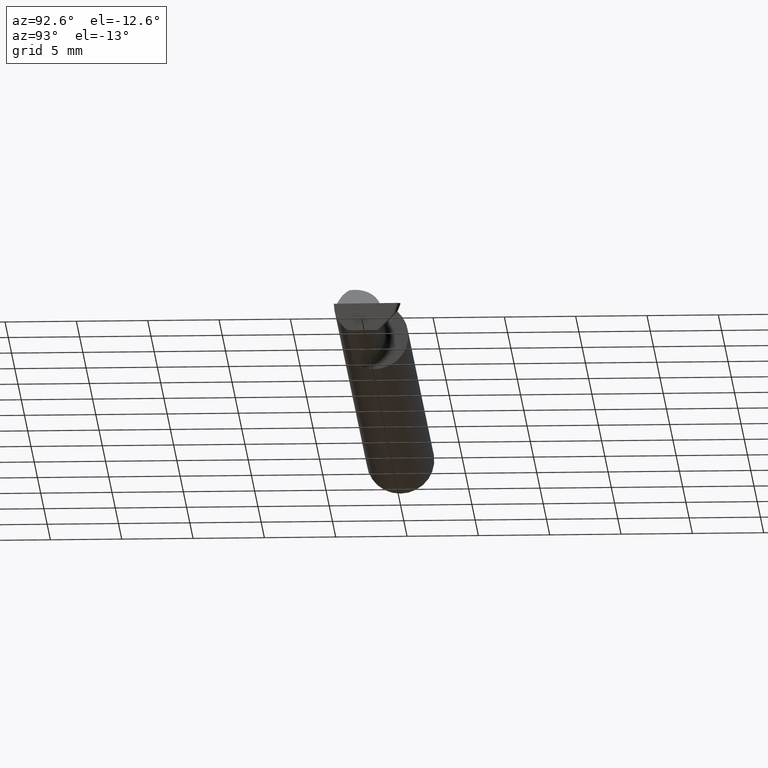
[diagram: clean part render]
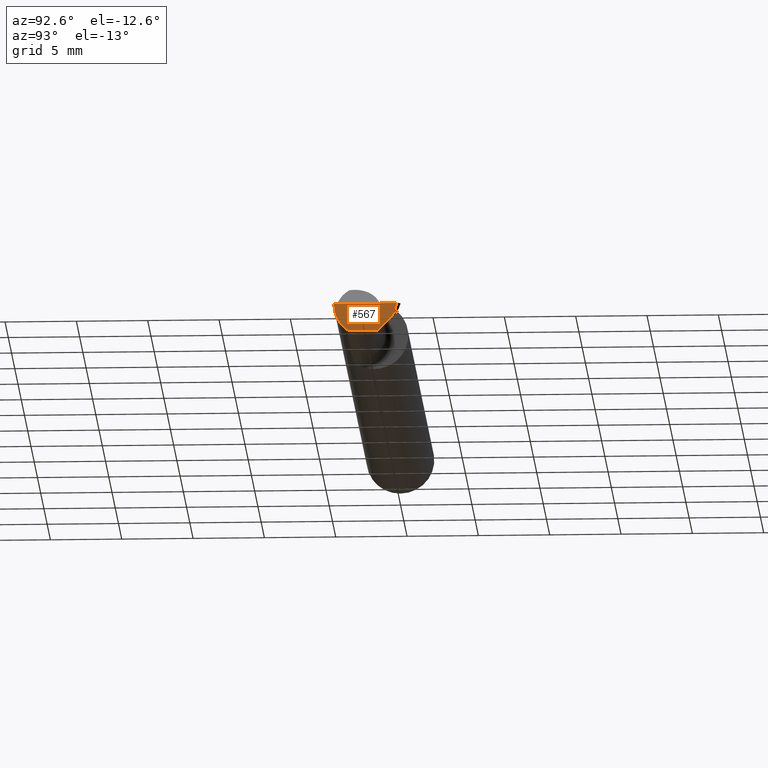
[diagram: same view with one face highlighted and labeled with its STEP entity id]
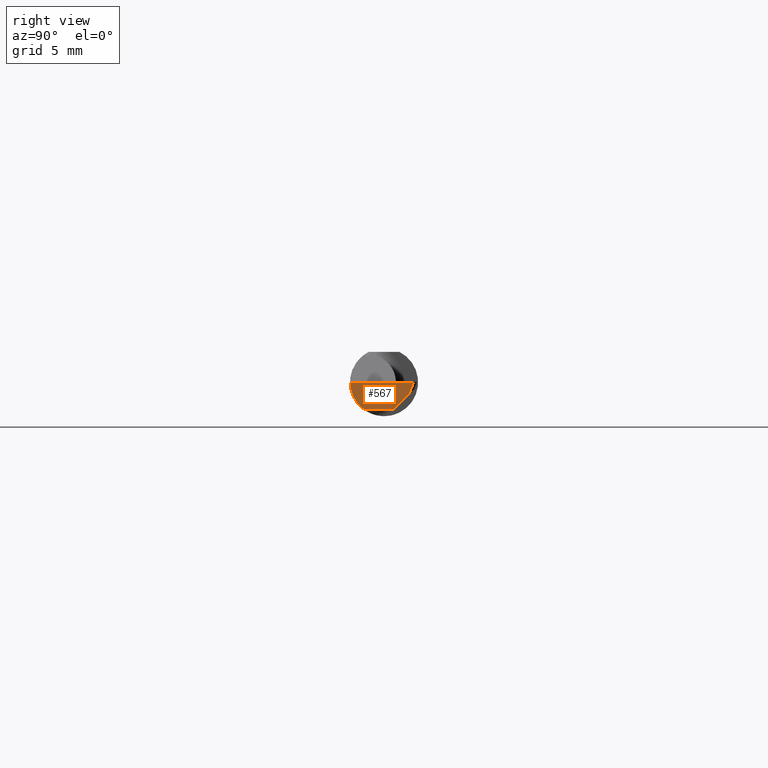
[diagram: same view with one face highlighted and labeled with its STEP entity id]
A machine part, auxiliary view. The second image highlights one B-rep face of the part: STEP entity #567.
A second angle (right view) of the same face is appended — the face is thin or edge-on in the first view.
In plain terms, the highlighted planar face has unit normal (-0.9992, 0.0174, 0.0349).
Its self-contained STEP definition (entity closure, byte-faithful):
#18 = VECTOR ( 'NONE', #527, 39.37007874015748143 ) ;
#26 = ORIENTED_EDGE ( 'NONE', *, *, #439, .F. ) ;
#38 = DIRECTION ( 'NONE',  ( 0.03490480639812536257, 0.000000000000000000, 0.9993906415863165194 ) ) ;
#53 = CARTESIAN_POINT ( 'NONE',  ( 1.995122200632949871, -0.04781600192481517270, -0.07500000000000003886 ) ) ;
#58 = VERTEX_POINT ( 'NONE', #440 ) ;
#71 = DIRECTION ( 'NONE',  ( -0.01745240643727645827, -0.9998476951563912696, 0.000000000000000000 ) ) ;
#75 = VECTOR ( 'NONE', #471, 39.37007874015748854 ) ;
#78 = EDGE_CURVE ( 'NONE', #574, #545, #761, .T. ) ;
#90 =( BOUNDED_CURVE ( )  B_SPLINE_CURVE ( 3, ( #273, #521, #563, #145 ),
 .UNSPECIFIED., .F., .F. ) 
 B_SPLINE_CURVE_WITH_KNOTS ( ( 4, 4 ),
 ( 0.2063001339125309086, 1.107331509589561058 ),
 .UNSPECIFIED. ) 
 CURVE ( )  GEOMETRIC_REPRESENTATION_ITEM ( )  RATIONAL_B_SPLINE_CURVE ( ( 1.000000000000000000, 0.9334817841311873199, 0.9334817841311873199, 1.000000000000000000 ) ) 
 REPRESENTATION_ITEM ( '' )  );
#116 = PLANE ( 'NONE',  #589 ) ;
#118 = CARTESIAN_POINT ( 'NONE',  ( 1.995213246285213016, -0.04259999999999980469, -0.07500000000000002498 ) ) ;
#124 = CARTESIAN_POINT ( 'NONE',  ( 1.996436576927335116, 0.02748456554894272708, -0.07500000000000002498 ) ) ;
#128 = LINE ( 'NONE', #808, #498 ) ;
#145 = CARTESIAN_POINT ( 'NONE',  ( 1.996942494641693600, -0.09360000000000001652, 0.000000000000000000 ) ) ;
#203 = DIRECTION ( 'NONE',  ( -0.01745240643727645827, -0.9998476951563912696, 0.000000000000000000 ) ) ;
#250 = EDGE_CURVE ( 'NONE', #712, #545, #128, .T. ) ;
#273 = CARTESIAN_POINT ( 'NONE',  ( 1.994999172194938941, -0.05810704225352107677, -0.07337936794867833123 ) ) ;
#279 = CARTESIAN_POINT ( 'NONE',  ( 1.998599639583657162, 0.06877923926384967024, -0.03370532628509262385 ) ) ;
#280 = LINE ( 'NONE', #769, #18 ) ;
#285 = ORIENTED_EDGE ( 'NONE', *, *, #654, .F. ) ;
#286 = EDGE_CURVE ( 'NONE', #430, #58, #450, .T. ) ;
#299 = ORIENTED_EDGE ( 'NONE', *, *, #250, .F. ) ;
#327 = VECTOR ( 'NONE', #71, 39.37007874015748143 ) ;
#430 = VERTEX_POINT ( 'NONE', #590 ) ;
#434 = CARTESIAN_POINT ( 'NONE',  ( 1.999998665932175124, 0.08148793596879662371, 0.000000000000000000 ) ) ;
#435 = CARTESIAN_POINT ( 'NONE',  ( 1.994999172194938941, -0.05810704225352107677, -0.07337936794867833123 ) ) ;
#439 = EDGE_CURVE ( 'NONE', #765, #712, #280, .T. ) ;
#440 = CARTESIAN_POINT ( 'NONE',  ( 1.996942494641693600, -0.09360000000000001652, 0.000000000000000000 ) ) ;
#450 = LINE ( 'NONE', #748, #327 ) ;
#471 = DIRECTION ( 'NONE',  ( 0.03876062227022340767, 0.3417631236437464470, 0.9389864650134710500 ) ) ;
#473 = ORIENTED_EDGE ( 'NONE', *, *, #787, .T. ) ;
#498 = VECTOR ( 'NONE', #203, 39.37007874015748143 ) ;
#521 = CARTESIAN_POINT ( 'NONE',  ( 1.995231968854677573, -0.08092595952420823802, -0.05530971394246247952 ) ) ;
#527 = DIRECTION ( 'NONE',  ( -0.03701368837992445593, -0.7066222423871552083, -0.7066222423871628688 ) ) ;
#545 = VERTEX_POINT ( 'NONE', #661 ) ;
#563 = CARTESIAN_POINT ( 'NONE',  ( 1.995925902212489333, -0.09359999999999997489, -0.02910696448121682586 ) ) ;
#567 = ADVANCED_FACE ( 'NONE', ( #791 ), #116, .F. ) ;
#574 = VERTEX_POINT ( 'NONE', #616 ) ;
#589 = AXIS2_PLACEMENT_3D ( 'NONE', #434, #604, #38 ) ;
#590 = CARTESIAN_POINT ( 'NONE',  ( 1.999990968925781987, 0.08104697476785363564, 0.000000000000000000 ) ) ;
#592 = CARTESIAN_POINT ( 'NONE',  ( 1.999996821881227627, 0.08109858189432714304, 0.0001417894146689500229 ) ) ;
#604 = DIRECTION ( 'NONE',  ( -0.9992386149554827179, 0.01744177490282310811, 0.03489949670250104552 ) ) ;
#616 = CARTESIAN_POINT ( 'NONE',  ( 1.994999172194938941, -0.05810704225352107677, -0.07337936794867833123 ) ) ;
#654 = EDGE_CURVE ( 'NONE', #574, #58, #90, .T. ) ;
#661 = CARTESIAN_POINT ( 'NONE',  ( 1.995213246285213016, -0.04259999999999980469, -0.07500000000000002498 ) ) ;
#673 = CARTESIAN_POINT ( 'NONE',  ( 1.995050583981878622, -0.05300374992736051755, -0.07445783144524575903 ) ) ;
#689 = ORIENTED_EDGE ( 'NONE', *, *, #286, .T. ) ;
#712 = VERTEX_POINT ( 'NONE', #124 ) ;
#736 = ORIENTED_EDGE ( 'NONE', *, *, #78, .T. ) ;
#748 = CARTESIAN_POINT ( 'NONE',  ( 1.999998665932175124, 0.08148793596879662371, 0.000000000000000000 ) ) ;
#761 =( BOUNDED_CURVE ( )  B_SPLINE_CURVE ( 3, ( #435, #673, #53, #118 ),
 .UNSPECIFIED., .F., .F. ) 
 B_SPLINE_CURVE_WITH_KNOTS ( ( 4, 4 ),
 ( 0.2552020043920804060, 0.4634648172053384418 ),
 .UNSPECIFIED. ) 
 CURVE ( )  GEOMETRIC_REPRESENTATION_ITEM ( )  RATIONAL_B_SPLINE_CURVE ( ( 1.000000000000000000, 0.9963888149483995926, 0.9963888149483995926, 1.000000000000000000 ) ) 
 REPRESENTATION_ITEM ( '' )  );
#765 = VERTEX_POINT ( 'NONE', #279 ) ;
#769 = CARTESIAN_POINT ( 'NONE',  ( 1.996630704565214964, 0.03119062438263837597, -0.07129394116630433098 ) ) ;
#777 = EDGE_LOOP ( 'NONE', ( #26, #473, #689, #285, #736, #299 ) ) ;
#784 = LINE ( 'NONE', #592, #75 ) ;
#787 = EDGE_CURVE ( 'NONE', #765, #430, #784, .T. ) ;
#791 = FACE_OUTER_BOUND ( 'NONE', #777, .T. ) ;
#808 = CARTESIAN_POINT ( 'NONE',  ( 1.995250001108639148, -0.04049431757617889815, -0.07500000000000002498 ) ) ;